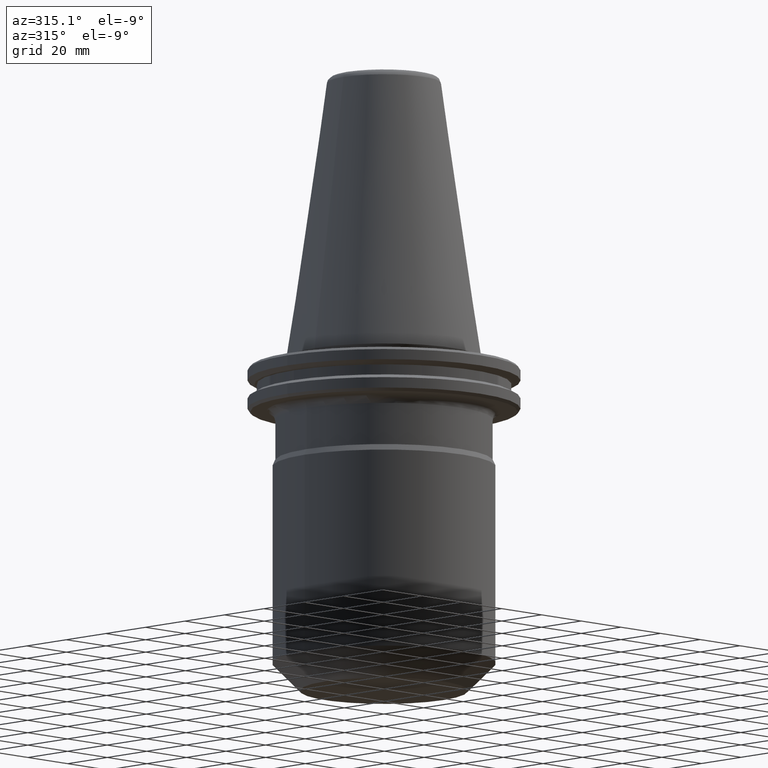
[diagram: clean part render]
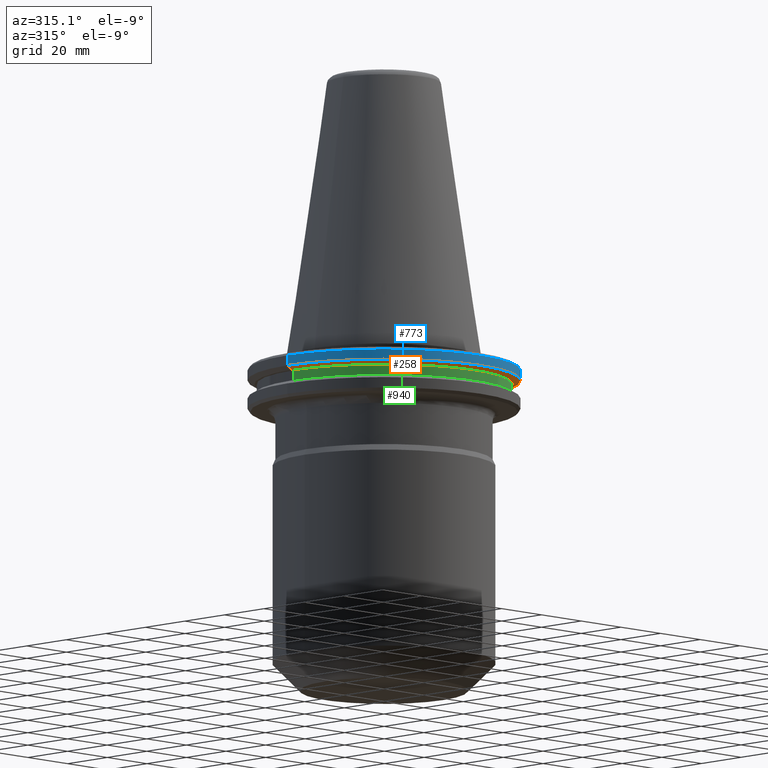
[diagram: same view with three faces highlighted in distinct colors, each labeled with its STEP entity id]
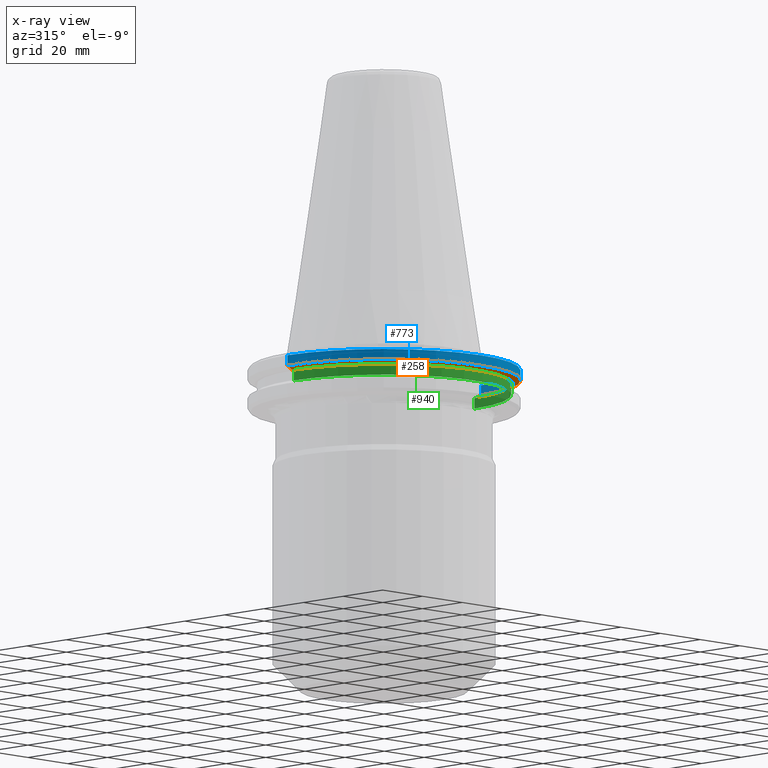
[diagram: x-ray of the same camera — body ghosted, the three highlighted faces saturated]
A machine part, auxiliary view with three faces highlighted in distinct colors.
The next image is the same camera in x-ray (body ghosted, the three faces saturated) — at least one of them is partly hidden behind the body in this view.
Their STEP definitions:

[orange] entity #258 — the highlighted conical surface has half-angle 60 deg.
#18 = VECTOR ( 'NONE', #674, 1000.000000000000000 ) ;
#109 = EDGE_LOOP ( 'NONE', ( #597, #1034, #1033, #339 ) ) ;
#115 = LINE ( 'NONE', #640, #931 ) ;
#134 = EDGE_CURVE ( 'NONE', #1065, #320, #115, .T. ) ;
#145 = DIRECTION ( 'NONE',  ( -0.0000000000000000000, -0.0000000000000000000, 1.000000000000000000 ) ) ;
#189 = CARTESIAN_POINT ( 'NONE',  ( 0.0000000000000000000, 0.0000000000000000000, -9.224999999999926800 ) ) ;
#190 = DIRECTION ( 'NONE',  ( -0.0000000000000000000, -0.0000000000000000000, 1.000000000000000000 ) ) ;
#238 = CARTESIAN_POINT ( 'NONE',  ( 0.0000000000000000000, 0.0000000000000000000, -9.224999999999926800 ) ) ;
#258 = ADVANCED_FACE ( 'NONE', ( #650 ), #389, .T. ) ;
#320 = VERTEX_POINT ( 'NONE', #731 ) ;
#321 = CARTESIAN_POINT ( 'NONE',  ( 0.0000000000000000000, 0.0000000000000000000, -7.852404735807838600 ) ) ;
#339 = ORIENTED_EDGE ( 'NONE', *, *, #591, .F. ) ;
#364 = EDGE_CURVE ( 'NONE', #1093, #1065, #974, .T. ) ;
#389 = CONICAL_SURFACE ( 'NONE', #505, 46.37259526419079900, 1.047197551196604700 ) ;
#422 = EDGE_CURVE ( 'NONE', #1093, #729, #709, .T. ) ;
#505 = AXIS2_PLACEMENT_3D ( 'NONE', #238, #574, #610 ) ;
#561 = DIRECTION ( 'NONE',  ( 1.000000000000000000, 0.0000000000000000000, 0.0000000000000000000 ) ) ;
#574 = DIRECTION ( 'NONE',  ( -0.0000000000000000000, -0.0000000000000000000, 1.000000000000000000 ) ) ;
#591 = EDGE_CURVE ( 'NONE', #729, #320, #1011, .T. ) ;
#597 = ORIENTED_EDGE ( 'NONE', *, *, #422, .F. ) ;
#610 = DIRECTION ( 'NONE',  ( 1.000000000000000000, 0.0000000000000000000, 0.0000000000000000000 ) ) ;
#640 = CARTESIAN_POINT ( 'NONE',  ( 46.37259526419079900, 0.0000000000000000000, -9.224999999999926800 ) ) ;
#650 = FACE_OUTER_BOUND ( 'NONE', #109, .T. ) ;
#674 = DIRECTION ( 'NONE',  ( -0.8660254037844421500, 1.060575238724911200E-016, 0.4999999999999939500 ) ) ;
#692 = CARTESIAN_POINT ( 'NONE',  ( -46.37259526419079900, 5.679005035844697300E-015, -9.224999999999926800 ) ) ;
#709 = LINE ( 'NONE', #692, #18 ) ;
#729 = VERTEX_POINT ( 'NONE', #1089 ) ;
#731 = CARTESIAN_POINT ( 'NONE',  ( 48.74999999999995700, 0.0000000000000000000, -7.852404735807838600 ) ) ;
#785 = CARTESIAN_POINT ( 'NONE',  ( -46.37259526419079900, 5.824579090844020300E-015, -9.224999999999926800 ) ) ;
#843 = DIRECTION ( 'NONE',  ( 0.8660254037844421500, 0.0000000000000000000, 0.4999999999999939500 ) ) ;
#873 = CARTESIAN_POINT ( 'NONE',  ( 46.37259526419079900, 0.0000000000000000000, -9.224999999999926800 ) ) ;
#911 = DIRECTION ( 'NONE',  ( 1.000000000000000000, 0.0000000000000000000, 0.0000000000000000000 ) ) ;
#931 = VECTOR ( 'NONE', #843, 1000.000000000000000 ) ;
#955 = AXIS2_PLACEMENT_3D ( 'NONE', #189, #190, #911 ) ;
#974 = CIRCLE ( 'NONE', #955, 46.37259526419079900 ) ;
#990 = AXIS2_PLACEMENT_3D ( 'NONE', #321, #145, #561 ) ;
#1011 = CIRCLE ( 'NONE', #990, 48.74999999999995700 ) ;
#1033 = ORIENTED_EDGE ( 'NONE', *, *, #134, .T. ) ;
#1034 = ORIENTED_EDGE ( 'NONE', *, *, #364, .T. ) ;
#1065 = VERTEX_POINT ( 'NONE', #873 ) ;
#1089 = CARTESIAN_POINT ( 'NONE',  ( -48.74999999999995700, 5.970153145843342400E-015, -7.852404735807838600 ) ) ;
#1093 = VERTEX_POINT ( 'NONE', #785 ) ;

[blue] entity #773 — the highlighted cylindrical surface (partial cylindrical patch) has radius 48.75 mm, axis along (-0, -0, 1).
#19 = ORIENTED_EDGE ( 'NONE', *, *, #1068, .T. ) ;
#37 = DIRECTION ( 'NONE',  ( -0.0000000000000000000, -0.0000000000000000000, 1.000000000000000000 ) ) ;
#47 = CARTESIAN_POINT ( 'NONE',  ( 48.74999999999995700, 0.0000000000000000000, -4.199999999999870500 ) ) ;
#70 = DIRECTION ( 'NONE',  ( 1.000000000000000000, 0.0000000000000000000, 0.0000000000000000000 ) ) ;
#145 = DIRECTION ( 'NONE',  ( -0.0000000000000000000, -0.0000000000000000000, 1.000000000000000000 ) ) ;
#152 = VERTEX_POINT ( 'NONE', #1045 ) ;
#180 = VERTEX_POINT ( 'NONE', #47 ) ;
#244 = EDGE_LOOP ( 'NONE', ( #1029, #322, #19, #311 ) ) ;
#282 = CARTESIAN_POINT ( 'NONE',  ( -48.74999999999995700, 5.970153145843342400E-015, 101.7499999999999600 ) ) ;
#311 = ORIENTED_EDGE ( 'NONE', *, *, #733, .F. ) ;
#320 = VERTEX_POINT ( 'NONE', #731 ) ;
#321 = CARTESIAN_POINT ( 'NONE',  ( 0.0000000000000000000, 0.0000000000000000000, -7.852404735807838600 ) ) ;
#322 = ORIENTED_EDGE ( 'NONE', *, *, #591, .T. ) ;
#411 = VECTOR ( 'NONE', #543, 1000.000000000000000 ) ;
#543 = DIRECTION ( 'NONE',  ( -0.0000000000000000000, -0.0000000000000000000, 1.000000000000000000 ) ) ;
#561 = DIRECTION ( 'NONE',  ( 1.000000000000000000, 0.0000000000000000000, 0.0000000000000000000 ) ) ;
#576 = VECTOR ( 'NONE', #37, 1000.000000000000000 ) ;
#591 = EDGE_CURVE ( 'NONE', #729, #320, #1011, .T. ) ;
#609 = CARTESIAN_POINT ( 'NONE',  ( 0.0000000000000000000, 0.0000000000000000000, 101.7499999999999600 ) ) ;
#645 = LINE ( 'NONE', #282, #411 ) ;
#670 = CIRCLE ( 'NONE', #700, 48.74999999999995700 ) ;
#700 = AXIS2_PLACEMENT_3D ( 'NONE', #980, #1083, #983 ) ;
#712 = CARTESIAN_POINT ( 'NONE',  ( 48.74999999999995700, 0.0000000000000000000, 101.7499999999999600 ) ) ;
#729 = VERTEX_POINT ( 'NONE', #1089 ) ;
#731 = CARTESIAN_POINT ( 'NONE',  ( 48.74999999999995700, 0.0000000000000000000, -7.852404735807838600 ) ) ;
#733 = EDGE_CURVE ( 'NONE', #152, #180, #670, .T. ) ;
#773 = ADVANCED_FACE ( 'NONE', ( #826 ), #801, .T. ) ;
#774 = EDGE_CURVE ( 'NONE', #729, #152, #645, .T. ) ;
#790 = LINE ( 'NONE', #712, #576 ) ;
#801 = CYLINDRICAL_SURFACE ( 'NONE', #1027, 48.74999999999995700 ) ;
#826 = FACE_OUTER_BOUND ( 'NONE', #244, .T. ) ;
#844 = DIRECTION ( 'NONE',  ( -0.0000000000000000000, -0.0000000000000000000, 1.000000000000000000 ) ) ;
#980 = CARTESIAN_POINT ( 'NONE',  ( 0.0000000000000000000, 0.0000000000000000000, -4.199999999999870500 ) ) ;
#983 = DIRECTION ( 'NONE',  ( 1.000000000000000000, 0.0000000000000000000, 0.0000000000000000000 ) ) ;
#990 = AXIS2_PLACEMENT_3D ( 'NONE', #321, #145, #561 ) ;
#1011 = CIRCLE ( 'NONE', #990, 48.74999999999995700 ) ;
#1027 = AXIS2_PLACEMENT_3D ( 'NONE', #609, #844, #70 ) ;
#1029 = ORIENTED_EDGE ( 'NONE', *, *, #774, .F. ) ;
#1045 = CARTESIAN_POINT ( 'NONE',  ( -48.74999999999995700, 5.970153145843342400E-015, -4.199999999999870500 ) ) ;
#1068 = EDGE_CURVE ( 'NONE', #320, #180, #790, .T. ) ;
#1083 = DIRECTION ( 'NONE',  ( -0.0000000000000000000, -0.0000000000000000000, 1.000000000000000000 ) ) ;
#1089 = CARTESIAN_POINT ( 'NONE',  ( -48.74999999999995700, 5.970153145843342400E-015, -7.852404735807838600 ) ) ;

[green] entity #940 — the highlighted cylindrical surface (partial cylindrical patch) has radius 45.5 mm, axis along (-0, -0, 1).
#23 = DIRECTION ( 'NONE',  ( -0.0000000000000000000, -0.0000000000000000000, 1.000000000000000000 ) ) ;
#40 = CARTESIAN_POINT ( 'NONE',  ( -45.50000000000020600, 5.572142936120482400E-015, 101.7499999999999600 ) ) ;
#43 = CARTESIAN_POINT ( 'NONE',  ( -45.50000000000020600, 5.572142936120482400E-015, -12.97500000000006900 ) ) ;
#60 = VERTEX_POINT ( 'NONE', #43 ) ;
#83 = VECTOR ( 'NONE', #23, 1000.000000000000000 ) ;
#89 = CARTESIAN_POINT ( 'NONE',  ( 0.0000000000000000000, 0.0000000000000000000, -9.224999999999926800 ) ) ;
#103 = DIRECTION ( 'NONE',  ( -0.0000000000000000000, -0.0000000000000000000, 1.000000000000000000 ) ) ;
#104 = DIRECTION ( 'NONE',  ( -0.0000000000000000000, -0.0000000000000000000, 1.000000000000000000 ) ) ;
#110 = EDGE_CURVE ( 'NONE', #60, #431, #316, .T. ) ;
#122 = EDGE_LOOP ( 'NONE', ( #772, #481, #762, #553 ) ) ;
#157 = DIRECTION ( 'NONE',  ( -0.0000000000000000000, -0.0000000000000000000, 1.000000000000000000 ) ) ;
#185 = VERTEX_POINT ( 'NONE', #654 ) ;
#193 = AXIS2_PLACEMENT_3D ( 'NONE', #787, #104, #1055 ) ;
#198 = CARTESIAN_POINT ( 'NONE',  ( 0.0000000000000000000, 0.0000000000000000000, 101.7499999999999600 ) ) ;
#223 = DIRECTION ( 'NONE',  ( 1.000000000000000000, 0.0000000000000000000, 0.0000000000000000000 ) ) ;
#240 = CIRCLE ( 'NONE', #280, 45.50000000000020600 ) ;
#246 = EDGE_CURVE ( 'NONE', #431, #185, #240, .T. ) ;
#280 = AXIS2_PLACEMENT_3D ( 'NONE', #89, #103, #510 ) ;
#316 = LINE ( 'NONE', #40, #83 ) ;
#388 = VECTOR ( 'NONE', #157, 1000.000000000000000 ) ;
#431 = VERTEX_POINT ( 'NONE', #1051 ) ;
#452 = FACE_OUTER_BOUND ( 'NONE', #122, .T. ) ;
#481 = ORIENTED_EDGE ( 'NONE', *, *, #1061, .T. ) ;
#510 = DIRECTION ( 'NONE',  ( 1.000000000000000000, 0.0000000000000000000, 0.0000000000000000000 ) ) ;
#553 = ORIENTED_EDGE ( 'NONE', *, *, #246, .F. ) ;
#592 = CARTESIAN_POINT ( 'NONE',  ( 45.50000000000020600, 0.0000000000000000000, -12.97500000000006900 ) ) ;
#601 = CIRCLE ( 'NONE', #193, 45.50000000000020600 ) ;
#617 = LINE ( 'NONE', #1022, #388 ) ;
#654 = CARTESIAN_POINT ( 'NONE',  ( 45.50000000000020600, 0.0000000000000000000, -9.224999999999926800 ) ) ;
#660 = CYLINDRICAL_SURFACE ( 'NONE', #892, 45.50000000000020600 ) ;
#688 = VERTEX_POINT ( 'NONE', #592 ) ;
#761 = EDGE_CURVE ( 'NONE', #688, #185, #617, .T. ) ;
#762 = ORIENTED_EDGE ( 'NONE', *, *, #761, .T. ) ;
#772 = ORIENTED_EDGE ( 'NONE', *, *, #110, .F. ) ;
#787 = CARTESIAN_POINT ( 'NONE',  ( 0.0000000000000000000, 0.0000000000000000000, -12.97500000000006900 ) ) ;
#872 = DIRECTION ( 'NONE',  ( -0.0000000000000000000, -0.0000000000000000000, 1.000000000000000000 ) ) ;
#892 = AXIS2_PLACEMENT_3D ( 'NONE', #198, #872, #223 ) ;
#940 = ADVANCED_FACE ( 'NONE', ( #452 ), #660, .T. ) ;
#1022 = CARTESIAN_POINT ( 'NONE',  ( 45.50000000000020600, 0.0000000000000000000, 101.7499999999999600 ) ) ;
#1051 = CARTESIAN_POINT ( 'NONE',  ( -45.50000000000020600, 5.572142936120482400E-015, -9.224999999999926800 ) ) ;
#1055 = DIRECTION ( 'NONE',  ( 1.000000000000000000, 0.0000000000000000000, 0.0000000000000000000 ) ) ;
#1061 = EDGE_CURVE ( 'NONE', #60, #688, #601, .T. ) ;